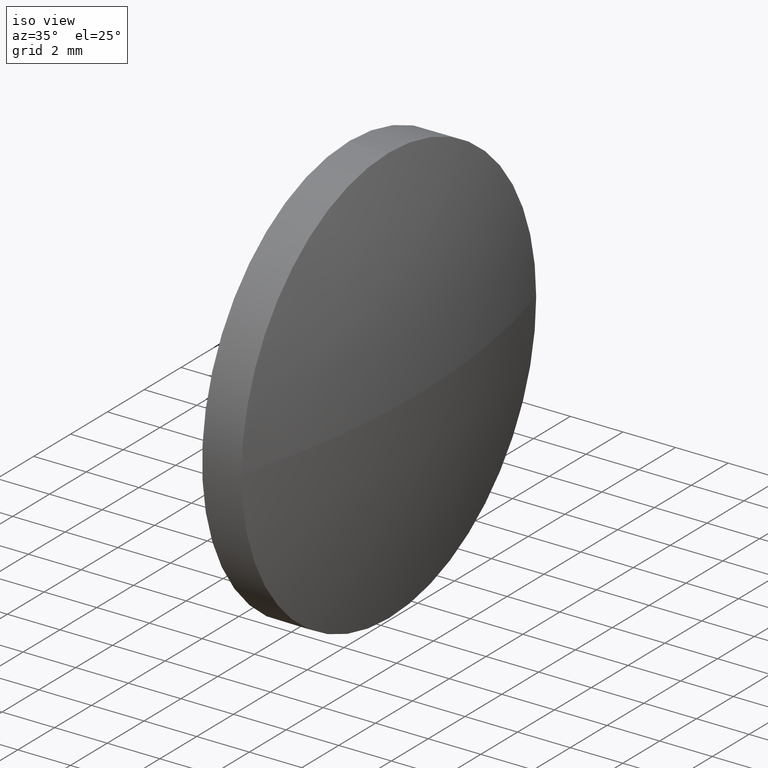
[diagram: clean part render]
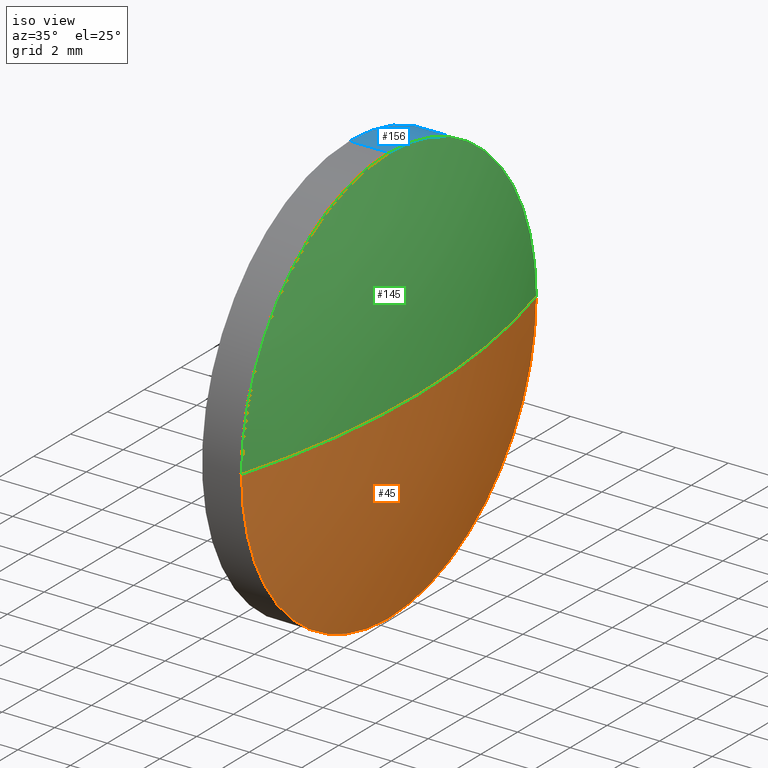
[diagram: same view with three faces highlighted in distinct colors, each labeled with its STEP entity id]
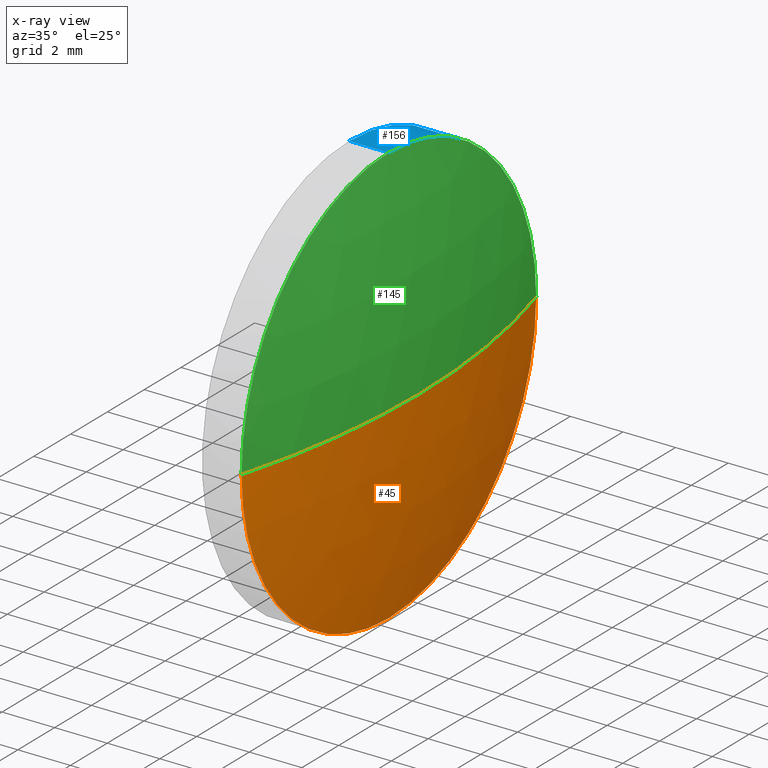
[diagram: x-ray of the same camera — body ghosted, the three highlighted faces saturated]
A machine part, iso view with three faces highlighted in distinct colors.
The next image is the same camera in x-ray (body ghosted, the three faces saturated) — at least one of them is partly hidden behind the body in this view.
Their STEP definitions:

[orange] entity #45 — the highlighted spherical surface has radius 28.8836 mm.
#4 = EDGE_LOOP ( 'NONE', ( #90, #133, #143, #179 ) ) ;
#7 = VERTEX_POINT ( 'NONE', #86 ) ;
#17 = CARTESIAN_POINT ( 'NONE',  ( 611.4564614584882100, 205.9704387826815000, 0.0000000000000000000 ) ) ;
#25 = CIRCLE ( 'NONE', #120, 7.999999999999979600 ) ;
#27 = DIRECTION ( 'NONE',  ( 0.0000000000000000000, 0.0000000000000000000, 1.000000000000000000 ) ) ;
#31 = DIRECTION ( 'NONE',  ( 0.0000000000000000000, -1.000000000000000000, -1.224646799147353000E-016 ) ) ;
#33 = DIRECTION ( 'NONE',  ( 0.0000000000000000000, 0.0000000000000000000, -1.000000000000000000 ) ) ;
#36 = CARTESIAN_POINT ( 'NONE',  ( 610.3264614584882100, 205.9704387826813600, -7.999999999999979600 ) ) ;
#45 = ADVANCED_FACE ( 'NONE', ( #147 ), #172, .T. ) ;
#46 = EDGE_CURVE ( 'NONE', #81, #128, #85, .T. ) ;
#49 = DIRECTION ( 'NONE',  ( -1.000000000000000000, -0.0000000000000000000, -0.0000000000000000000 ) ) ;
#56 = EDGE_CURVE ( 'NONE', #184, #7, #25, .T. ) ;
#60 = CIRCLE ( 'NONE', #183, 7.999999999999979600 ) ;
#66 = EDGE_CURVE ( 'NONE', #128, #184, #60, .T. ) ;
#75 = EDGE_CURVE ( 'NONE', #81, #7, #171, .T. ) ;
#78 = DIRECTION ( 'NONE',  ( 0.0000000000000000000, -1.224646799147353200E-016, 1.000000000000000000 ) ) ;
#80 = DIRECTION ( 'NONE',  ( -1.000000000000000000, 0.0000000000000000000, 0.0000000000000000000 ) ) ;
#81 = VERTEX_POINT ( 'NONE', #17 ) ;
#85 = CIRCLE ( 'NONE', #100, 28.88358407079649800 ) ;
#86 = CARTESIAN_POINT ( 'NONE',  ( 610.3264614584882100, 197.9704387826815300, 0.0000000000000000000 ) ) ;
#87 = DIRECTION ( 'NONE',  ( 0.0000000000000000000, -1.000000000000000000, 0.0000000000000000000 ) ) ;
#88 = AXIS2_PLACEMENT_3D ( 'NONE', #119, #33, #80 ) ;
#90 = ORIENTED_EDGE ( 'NONE', *, *, #46, .F. ) ;
#99 = DIRECTION ( 'NONE',  ( 0.0000000000000000000, 0.0000000000000000000, 1.000000000000000000 ) ) ;
#100 = AXIS2_PLACEMENT_3D ( 'NONE', #158, #78, #31 ) ;
#101 = CARTESIAN_POINT ( 'NONE',  ( 610.3264614584882100, 205.9704387826813600, 0.0000000000000000000 ) ) ;
#102 = DIRECTION ( 'NONE',  ( -1.000000000000000000, -0.0000000000000000000, -0.0000000000000000000 ) ) ;
#105 = CARTESIAN_POINT ( 'NONE',  ( 610.3264614584882100, 213.9704387826813600, 9.797174393178630400E-016 ) ) ;
#110 = AXIS2_PLACEMENT_3D ( 'NONE', #169, #159, #87 ) ;
#119 = CARTESIAN_POINT ( 'NONE',  ( 582.5728773876917300, 205.9704387826815000, 0.0000000000000000000 ) ) ;
#120 = AXIS2_PLACEMENT_3D ( 'NONE', #170, #102, #27 ) ;
#128 = VERTEX_POINT ( 'NONE', #105 ) ;
#133 = ORIENTED_EDGE ( 'NONE', *, *, #75, .T. ) ;
#143 = ORIENTED_EDGE ( 'NONE', *, *, #56, .F. ) ;
#147 = FACE_OUTER_BOUND ( 'NONE', #4, .T. ) ;
#158 = CARTESIAN_POINT ( 'NONE',  ( 582.5728773876917300, 205.9704387826815000, 0.0000000000000000000 ) ) ;
#159 = DIRECTION ( 'NONE',  ( 0.0000000000000000000, 0.0000000000000000000, 1.000000000000000000 ) ) ;
#169 = CARTESIAN_POINT ( 'NONE',  ( 582.5728773876917300, 205.9704387826815000, 0.0000000000000000000 ) ) ;
#170 = CARTESIAN_POINT ( 'NONE',  ( 610.3264614584882100, 205.9704387826813600, 0.0000000000000000000 ) ) ;
#171 = CIRCLE ( 'NONE', #88, 28.88358407079649800 ) ;
#172 = SPHERICAL_SURFACE ( 'NONE', #110, 28.88358407079649100 ) ;
#179 = ORIENTED_EDGE ( 'NONE', *, *, #66, .F. ) ;
#183 = AXIS2_PLACEMENT_3D ( 'NONE', #101, #49, #99 ) ;
#184 = VERTEX_POINT ( 'NONE', #36 ) ;

[blue] entity #156 — the highlighted cylindrical surface (partial cylindrical patch) has radius 8 mm, axis along (-1, -0, -0).
#5 = DIRECTION ( 'NONE',  ( 0.0000000000000000000, 0.0000000000000000000, 1.000000000000000000 ) ) ;
#8 = DIRECTION ( 'NONE',  ( 0.0000000000000000000, 0.0000000000000000000, 1.000000000000000000 ) ) ;
#11 = EDGE_CURVE ( 'NONE', #184, #30, #98, .T. ) ;
#14 = CARTESIAN_POINT ( 'NONE',  ( 608.8264614584882100, 205.9704387826813600, -7.999999999999979600 ) ) ;
#28 = CIRCLE ( 'NONE', #107, 7.999999999999979600 ) ;
#30 = VERTEX_POINT ( 'NONE', #14 ) ;
#36 = CARTESIAN_POINT ( 'NONE',  ( 610.3264614584882100, 205.9704387826813600, -7.999999999999979600 ) ) ;
#42 = ORIENTED_EDGE ( 'NONE', *, *, #66, .T. ) ;
#47 = CARTESIAN_POINT ( 'NONE',  ( 606.5455140538709900, 205.9704387826813600, 7.999999999999979600 ) ) ;
#49 = DIRECTION ( 'NONE',  ( -1.000000000000000000, -0.0000000000000000000, -0.0000000000000000000 ) ) ;
#51 = FACE_OUTER_BOUND ( 'NONE', #114, .T. ) ;
#53 = EDGE_CURVE ( 'NONE', #160, #162, #136, .T. ) ;
#60 = CIRCLE ( 'NONE', #183, 7.999999999999979600 ) ;
#62 = ORIENTED_EDGE ( 'NONE', *, *, #132, .T. ) ;
#66 = EDGE_CURVE ( 'NONE', #128, #184, #60, .T. ) ;
#68 = DIRECTION ( 'NONE',  ( -1.000000000000000000, -0.0000000000000000000, -0.0000000000000000000 ) ) ;
#76 = AXIS2_PLACEMENT_3D ( 'NONE', #137, #149, #115 ) ;
#77 = ORIENTED_EDGE ( 'NONE', *, *, #186, .F. ) ;
#92 = VECTOR ( 'NONE', #182, 1000.000000000000000 ) ;
#95 = DIRECTION ( 'NONE',  ( -1.000000000000000000, -0.0000000000000000000, -0.0000000000000000000 ) ) ;
#98 = LINE ( 'NONE', #168, #92 ) ;
#99 = DIRECTION ( 'NONE',  ( 0.0000000000000000000, 0.0000000000000000000, 1.000000000000000000 ) ) ;
#101 = CARTESIAN_POINT ( 'NONE',  ( 610.3264614584882100, 205.9704387826813600, 0.0000000000000000000 ) ) ;
#103 = VECTOR ( 'NONE', #135, 1000.000000000000000 ) ;
#104 = ORIENTED_EDGE ( 'NONE', *, *, #53, .F. ) ;
#105 = CARTESIAN_POINT ( 'NONE',  ( 610.3264614584882100, 213.9704387826813600, 9.797174393178630400E-016 ) ) ;
#107 = AXIS2_PLACEMENT_3D ( 'NONE', #127, #95, #5 ) ;
#114 = EDGE_LOOP ( 'NONE', ( #42, #122, #77, #104, #62 ) ) ;
#115 = DIRECTION ( 'NONE',  ( 0.0000000000000000000, 0.0000000000000000000, 1.000000000000000000 ) ) ;
#121 = CYLINDRICAL_SURFACE ( 'NONE', #126, 7.999999999999979600 ) ;
#122 = ORIENTED_EDGE ( 'NONE', *, *, #11, .T. ) ;
#123 = CARTESIAN_POINT ( 'NONE',  ( 606.5455140538709900, 205.9704387826813600, 0.0000000000000000000 ) ) ;
#126 = AXIS2_PLACEMENT_3D ( 'NONE', #123, #68, #8 ) ;
#127 = CARTESIAN_POINT ( 'NONE',  ( 608.8264614584882100, 205.9704387826813600, 0.0000000000000000000 ) ) ;
#128 = VERTEX_POINT ( 'NONE', #105 ) ;
#132 = EDGE_CURVE ( 'NONE', #160, #128, #173, .T. ) ;
#135 = DIRECTION ( 'NONE',  ( -1.000000000000000000, -0.0000000000000000000, -0.0000000000000000000 ) ) ;
#136 = LINE ( 'NONE', #47, #103 ) ;
#137 = CARTESIAN_POINT ( 'NONE',  ( 610.3264614584882100, 205.9704387826813600, 0.0000000000000000000 ) ) ;
#140 = CARTESIAN_POINT ( 'NONE',  ( 610.3264614584882100, 205.9704387826813600, 7.999999999999979600 ) ) ;
#149 = DIRECTION ( 'NONE',  ( -1.000000000000000000, -0.0000000000000000000, -0.0000000000000000000 ) ) ;
#156 = ADVANCED_FACE ( 'NONE', ( #51 ), #121, .T. ) ;
#160 = VERTEX_POINT ( 'NONE', #140 ) ;
#162 = VERTEX_POINT ( 'NONE', #178 ) ;
#168 = CARTESIAN_POINT ( 'NONE',  ( 606.5455140538709900, 205.9704387826813600, -7.999999999999979600 ) ) ;
#173 = CIRCLE ( 'NONE', #76, 7.999999999999979600 ) ;
#178 = CARTESIAN_POINT ( 'NONE',  ( 608.8264614584882100, 205.9704387826813600, 7.999999999999979600 ) ) ;
#182 = DIRECTION ( 'NONE',  ( -1.000000000000000000, -0.0000000000000000000, -0.0000000000000000000 ) ) ;
#183 = AXIS2_PLACEMENT_3D ( 'NONE', #101, #49, #99 ) ;
#184 = VERTEX_POINT ( 'NONE', #36 ) ;
#186 = EDGE_CURVE ( 'NONE', #162, #30, #28, .T. ) ;

[green] entity #145 — the highlighted spherical surface has radius 28.8836 mm.
#7 = VERTEX_POINT ( 'NONE', #86 ) ;
#13 = ORIENTED_EDGE ( 'NONE', *, *, #75, .F. ) ;
#17 = CARTESIAN_POINT ( 'NONE',  ( 611.4564614584882100, 205.9704387826815000, 0.0000000000000000000 ) ) ;
#21 = SPHERICAL_SURFACE ( 'NONE', #154, 28.88358407079649100 ) ;
#22 = EDGE_LOOP ( 'NONE', ( #13, #79, #91, #72 ) ) ;
#23 = DIRECTION ( 'NONE',  ( 0.0000000000000000000, 0.0000000000000000000, 1.000000000000000000 ) ) ;
#31 = DIRECTION ( 'NONE',  ( 0.0000000000000000000, -1.000000000000000000, -1.224646799147353000E-016 ) ) ;
#33 = DIRECTION ( 'NONE',  ( 0.0000000000000000000, 0.0000000000000000000, -1.000000000000000000 ) ) ;
#46 = EDGE_CURVE ( 'NONE', #81, #128, #85, .T. ) ;
#67 = FACE_OUTER_BOUND ( 'NONE', #22, .T. ) ;
#72 = ORIENTED_EDGE ( 'NONE', *, *, #176, .F. ) ;
#75 = EDGE_CURVE ( 'NONE', #81, #7, #171, .T. ) ;
#76 = AXIS2_PLACEMENT_3D ( 'NONE', #137, #149, #115 ) ;
#78 = DIRECTION ( 'NONE',  ( 0.0000000000000000000, -1.224646799147353200E-016, 1.000000000000000000 ) ) ;
#79 = ORIENTED_EDGE ( 'NONE', *, *, #46, .T. ) ;
#80 = DIRECTION ( 'NONE',  ( -1.000000000000000000, 0.0000000000000000000, 0.0000000000000000000 ) ) ;
#81 = VERTEX_POINT ( 'NONE', #17 ) ;
#83 = DIRECTION ( 'NONE',  ( 0.0000000000000000000, 0.0000000000000000000, 1.000000000000000000 ) ) ;
#85 = CIRCLE ( 'NONE', #100, 28.88358407079649800 ) ;
#86 = CARTESIAN_POINT ( 'NONE',  ( 610.3264614584882100, 197.9704387826815300, 0.0000000000000000000 ) ) ;
#88 = AXIS2_PLACEMENT_3D ( 'NONE', #119, #33, #80 ) ;
#91 = ORIENTED_EDGE ( 'NONE', *, *, #132, .F. ) ;
#100 = AXIS2_PLACEMENT_3D ( 'NONE', #158, #78, #31 ) ;
#105 = CARTESIAN_POINT ( 'NONE',  ( 610.3264614584882100, 213.9704387826813600, 9.797174393178630400E-016 ) ) ;
#108 = DIRECTION ( 'NONE',  ( 0.0000000000000000000, -1.000000000000000000, 0.0000000000000000000 ) ) ;
#109 = AXIS2_PLACEMENT_3D ( 'NONE', #129, #164, #83 ) ;
#112 = CARTESIAN_POINT ( 'NONE',  ( 582.5728773876917300, 205.9704387826815000, 0.0000000000000000000 ) ) ;
#115 = DIRECTION ( 'NONE',  ( 0.0000000000000000000, 0.0000000000000000000, 1.000000000000000000 ) ) ;
#119 = CARTESIAN_POINT ( 'NONE',  ( 582.5728773876917300, 205.9704387826815000, 0.0000000000000000000 ) ) ;
#128 = VERTEX_POINT ( 'NONE', #105 ) ;
#129 = CARTESIAN_POINT ( 'NONE',  ( 610.3264614584882100, 205.9704387826813600, 0.0000000000000000000 ) ) ;
#132 = EDGE_CURVE ( 'NONE', #160, #128, #173, .T. ) ;
#137 = CARTESIAN_POINT ( 'NONE',  ( 610.3264614584882100, 205.9704387826813600, 0.0000000000000000000 ) ) ;
#140 = CARTESIAN_POINT ( 'NONE',  ( 610.3264614584882100, 205.9704387826813600, 7.999999999999979600 ) ) ;
#145 = ADVANCED_FACE ( 'NONE', ( #67 ), #21, .T. ) ;
#149 = DIRECTION ( 'NONE',  ( -1.000000000000000000, -0.0000000000000000000, -0.0000000000000000000 ) ) ;
#154 = AXIS2_PLACEMENT_3D ( 'NONE', #112, #23, #108 ) ;
#158 = CARTESIAN_POINT ( 'NONE',  ( 582.5728773876917300, 205.9704387826815000, 0.0000000000000000000 ) ) ;
#160 = VERTEX_POINT ( 'NONE', #140 ) ;
#164 = DIRECTION ( 'NONE',  ( -1.000000000000000000, -0.0000000000000000000, -0.0000000000000000000 ) ) ;
#166 = CIRCLE ( 'NONE', #109, 7.999999999999979600 ) ;
#171 = CIRCLE ( 'NONE', #88, 28.88358407079649800 ) ;
#173 = CIRCLE ( 'NONE', #76, 7.999999999999979600 ) ;
#176 = EDGE_CURVE ( 'NONE', #7, #160, #166, .T. ) ;